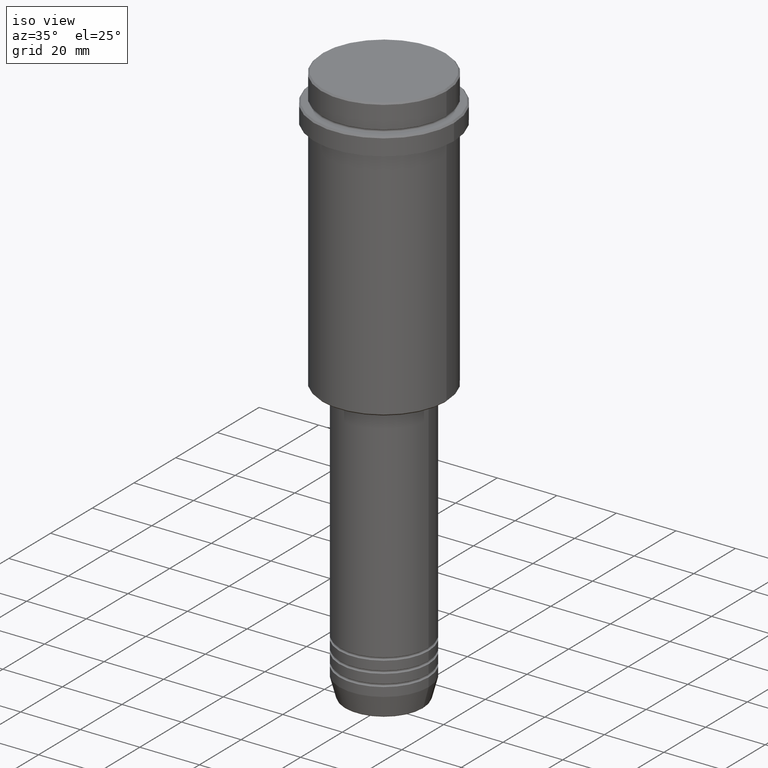
[diagram: clean part render]
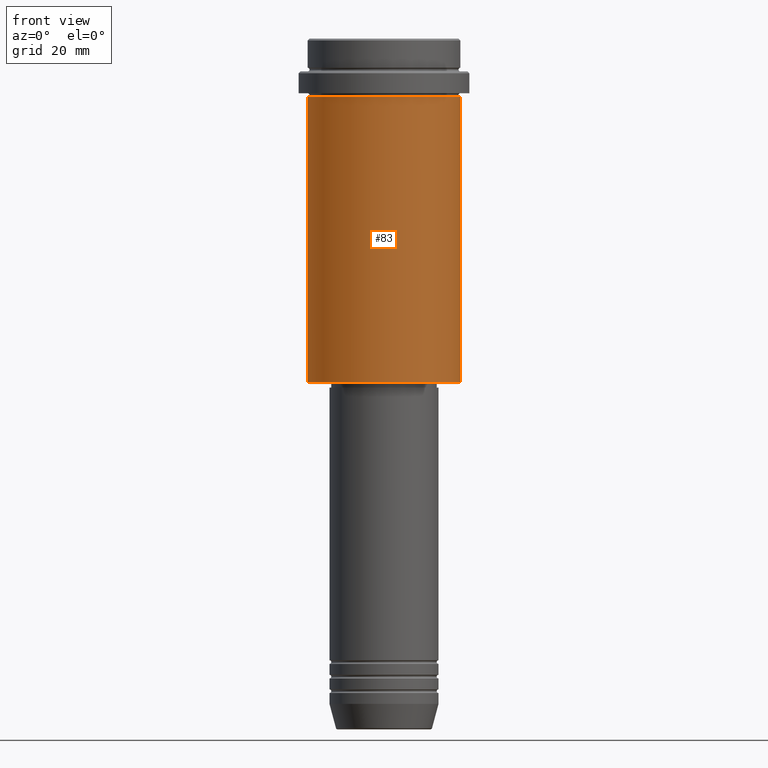
[diagram: tour spotlight — one face highlighted and labeled with its STEP entity id]
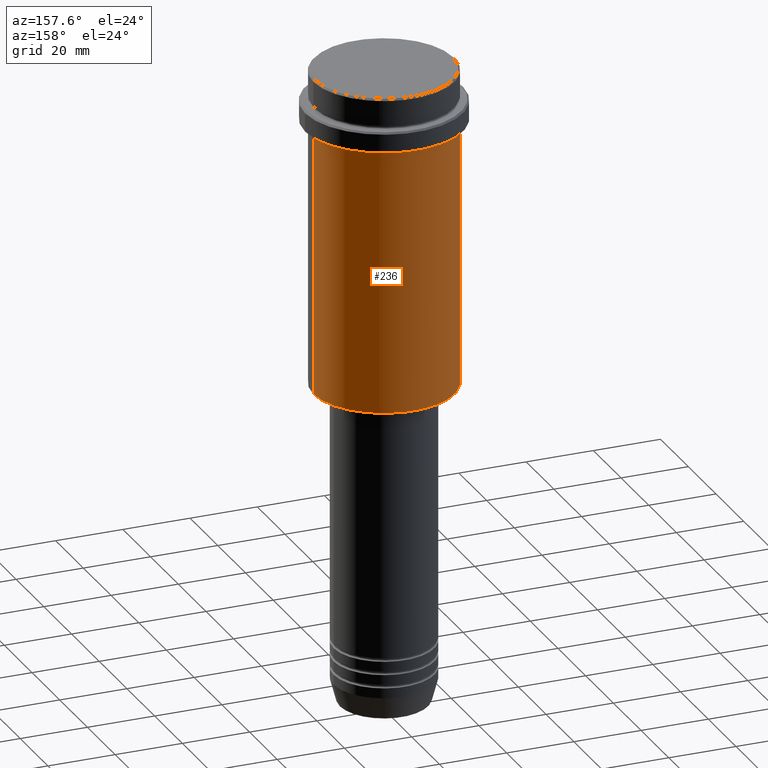
[diagram: tour spotlight — one face highlighted and labeled with its STEP entity id]
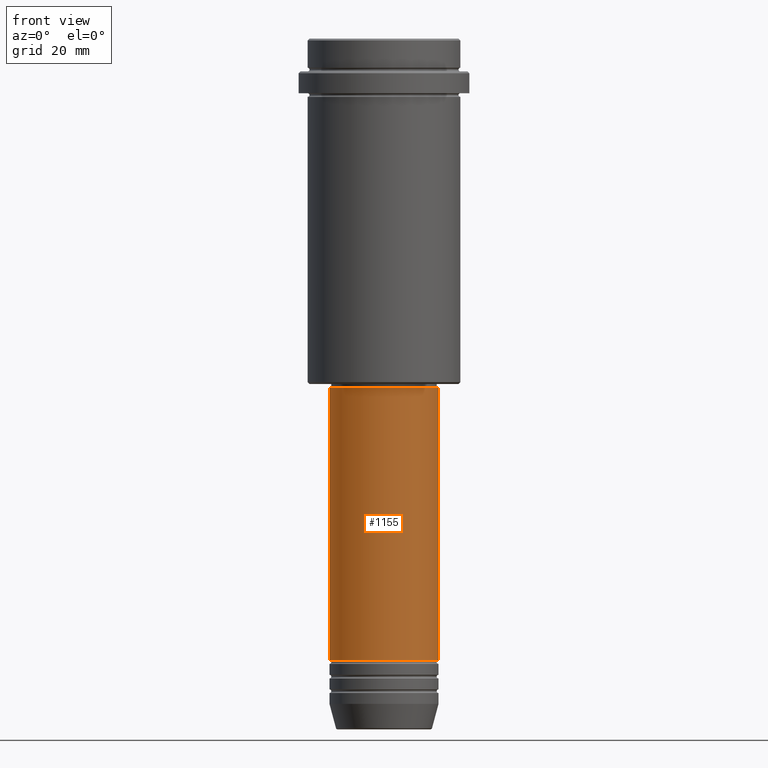
[diagram: tour spotlight — one face highlighted and labeled with its STEP entity id]
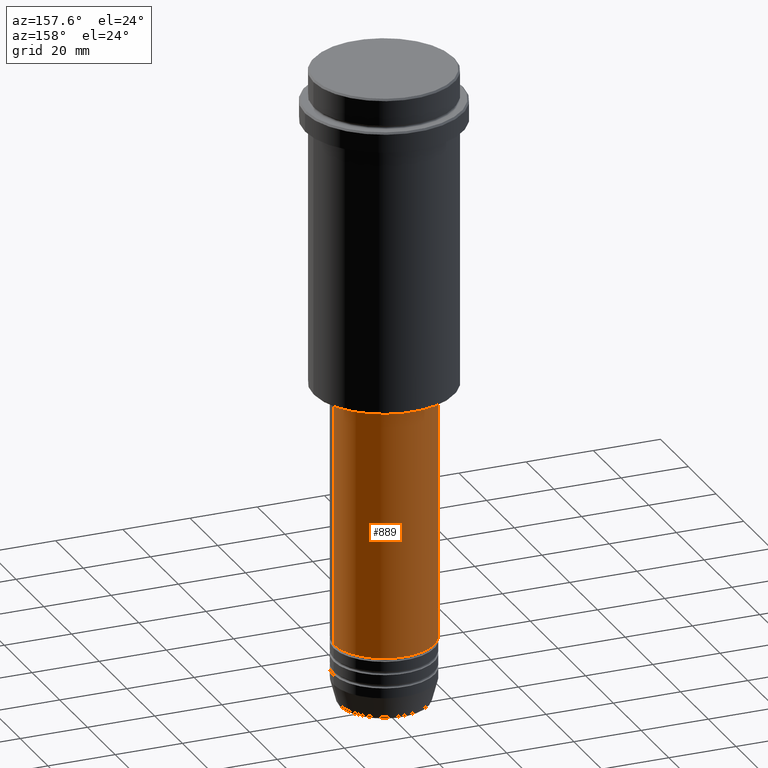
[diagram: tour spotlight — one face highlighted and labeled with its STEP entity id]
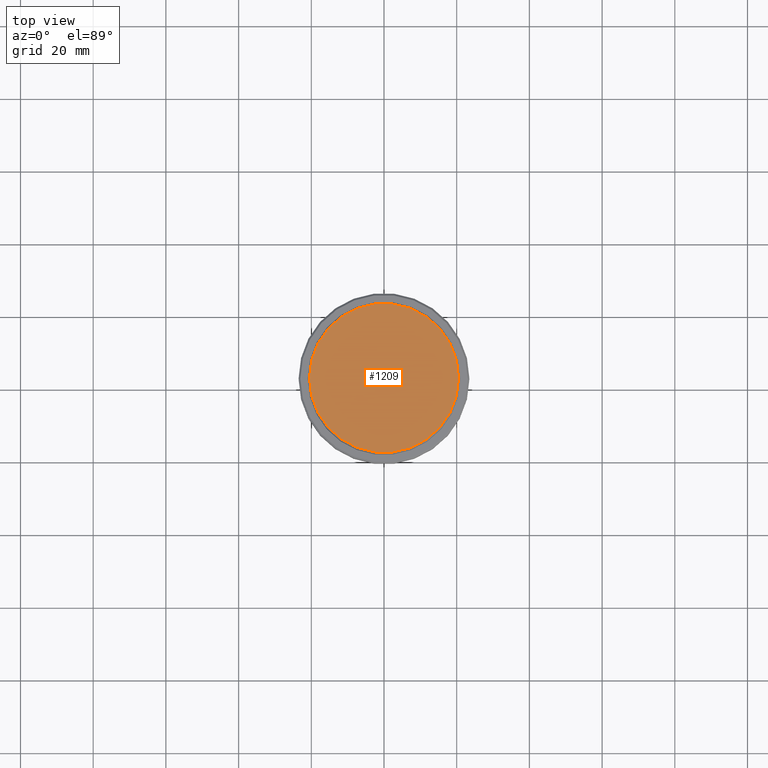
[diagram: tour spotlight — one face highlighted and labeled with its STEP entity id]
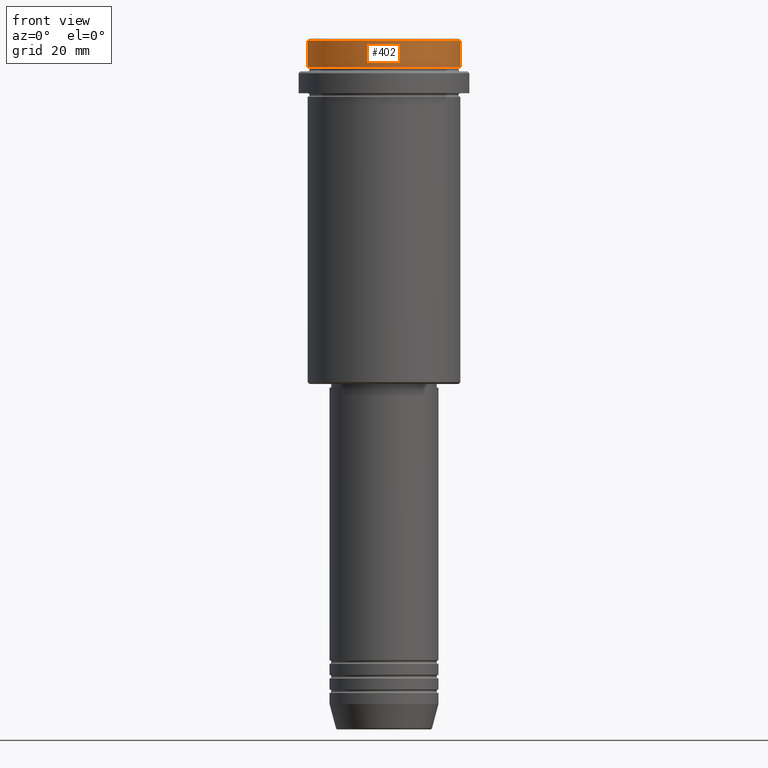
[diagram: tour spotlight — one face highlighted and labeled with its STEP entity id]
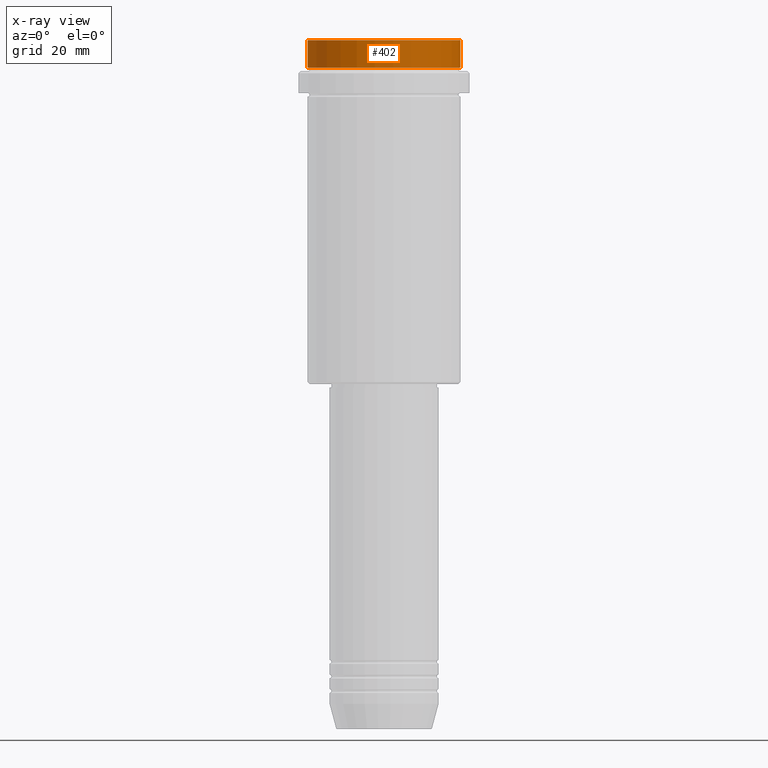
[diagram: x-ray of the same camera — body ghosted, this tour face saturated]
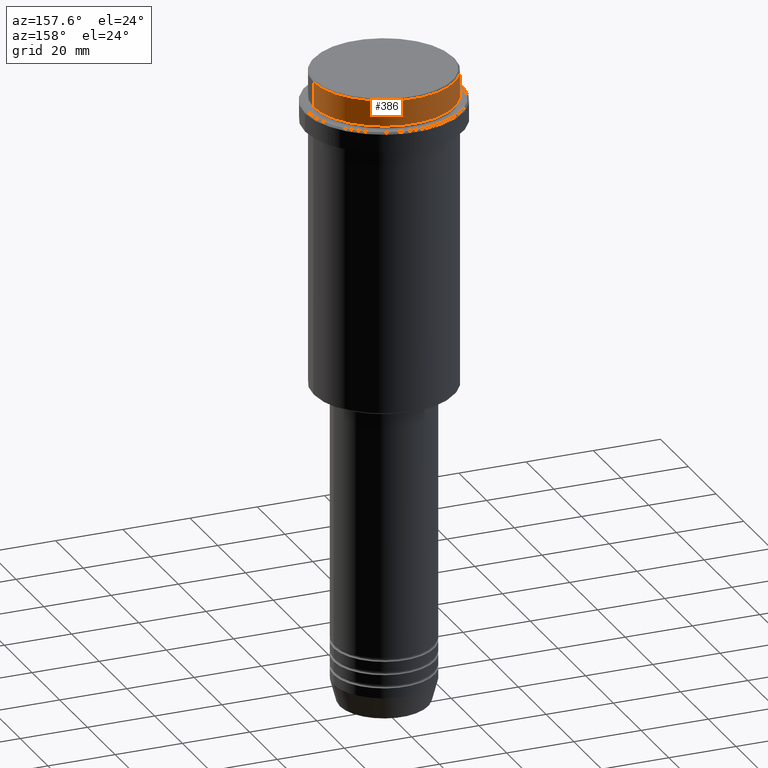
[diagram: tour spotlight — one face highlighted and labeled with its STEP entity id]
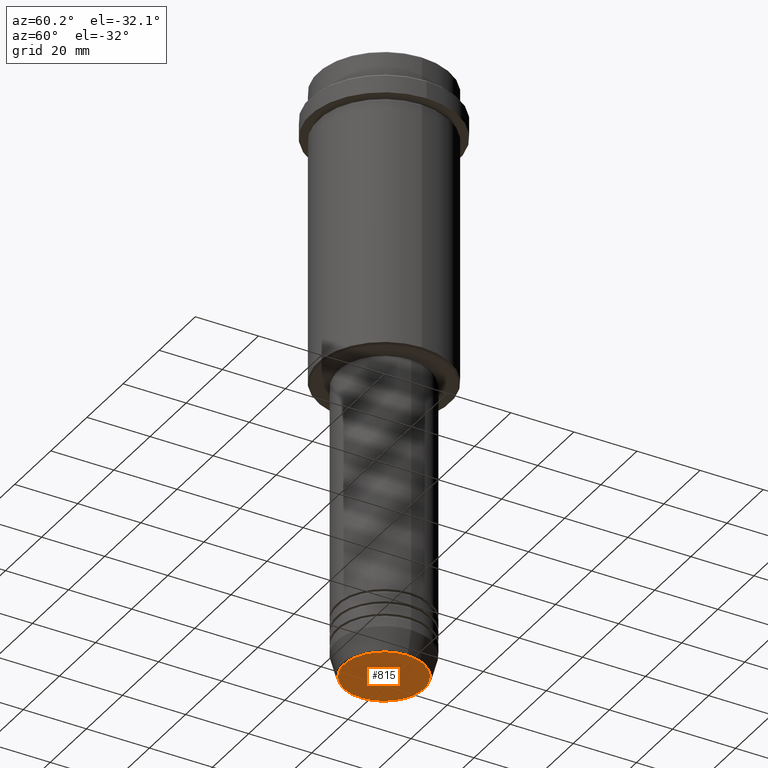
[diagram: tour spotlight — one face highlighted and labeled with its STEP entity id]
A machine part: a face-by-face anatomy tour. The part has 52 B-rep faces; the first image is the clean iso view, then the 8 largest visible faces are spotlighted one at a time (largest first), each with its STEP entity span.

Face 1 — front view, entity #83. In plain terms, the highlighted cylindrical surface (partial cylindrical patch) has radius 21 mm, axis along (-0, -0, 1).
Definition (entity closure, byte-faithful):
#27 = CARTESIAN_POINT ( 'NONE',  ( 21.00000000000000000, 0.000000000000000000, 0.000000000000000000 ) ) ;
#83 = ADVANCED_FACE ( 'NONE', ( #941 ), #191, .T. ) ;
#95 = CARTESIAN_POINT ( 'NONE',  ( -21.00000000000000000, 2.571758278209441661E-15, -94.49999999999998579 ) ) ;
#153 = CARTESIAN_POINT ( 'NONE',  ( 0.000000000000000000, 0.000000000000000000, -16.00000000000000355 ) ) ;
#171 = VERTEX_POINT ( 'NONE', #95 ) ;
#177 = DIRECTION ( 'NONE',  ( -0.000000000000000000, -0.000000000000000000, 1.000000000000000000 ) ) ;
#191 = CYLINDRICAL_SURFACE ( 'NONE', #225, 21.00000000000000000 ) ;
#225 = AXIS2_PLACEMENT_3D ( 'NONE', #622, #1357, #715 ) ;
#258 = VERTEX_POINT ( 'NONE', #1188 ) ;
#271 = VERTEX_POINT ( 'NONE', #821 ) ;
#285 = EDGE_CURVE ( 'NONE', #171, #258, #1065, .T. ) ;
#288 = VECTOR ( 'NONE', #416, 1000.000000000000000 ) ;
#322 = EDGE_LOOP ( 'NONE', ( #1410, #347, #1399, #1009 ) ) ;
#336 = DIRECTION ( 'NONE',  ( -0.000000000000000000, -0.000000000000000000, 1.000000000000000000 ) ) ;
#347 = ORIENTED_EDGE ( 'NONE', *, *, #285, .T. ) ;
#363 = CIRCLE ( 'NONE', #1218, 21.00000000000000000 ) ;
#416 = DIRECTION ( 'NONE',  ( -0.000000000000000000, -0.000000000000000000, 1.000000000000000000 ) ) ;
#421 = LINE ( 'NONE', #854, #288 ) ;
#443 = DIRECTION ( 'NONE',  ( -1.000000000000000000, 0.000000000000000000, 0.000000000000000000 ) ) ;
#545 = VECTOR ( 'NONE', #336, 1000.000000000000000 ) ;
#575 = VERTEX_POINT ( 'NONE', #1037 ) ;
#621 = EDGE_CURVE ( 'NONE', #271, #575, #363, .T. ) ;
#622 = CARTESIAN_POINT ( 'NONE',  ( 0.000000000000000000, 0.000000000000000000, 0.000000000000000000 ) ) ;
#715 = DIRECTION ( 'NONE',  ( 1.000000000000000000, 0.000000000000000000, 0.000000000000000000 ) ) ;
#769 = EDGE_CURVE ( 'NONE', #171, #271, #421, .T. ) ;
#796 = LINE ( 'NONE', #27, #545 ) ;
#817 = DIRECTION ( 'NONE',  ( 1.000000000000000000, 0.000000000000000000, 0.000000000000000000 ) ) ;
#821 = CARTESIAN_POINT ( 'NONE',  ( -21.00000000000000000, 2.571758278209441661E-15, -16.00000000000000355 ) ) ;
#854 = CARTESIAN_POINT ( 'NONE',  ( -21.00000000000000000, 2.571758278209441661E-15, 0.000000000000000000 ) ) ;
#873 = DIRECTION ( 'NONE',  ( -0.000000000000000000, -0.000000000000000000, 1.000000000000000000 ) ) ;
#876 = EDGE_CURVE ( 'NONE', #258, #575, #796, .T. ) ;
#941 = FACE_OUTER_BOUND ( 'NONE', #322, .T. ) ;
#1009 = ORIENTED_EDGE ( 'NONE', *, *, #621, .F. ) ;
#1037 = CARTESIAN_POINT ( 'NONE',  ( 21.00000000000000000, 0.000000000000000000, -16.00000000000000355 ) ) ;
#1065 = CIRCLE ( 'NONE', #1201, 21.00000000000000000 ) ;
#1188 = CARTESIAN_POINT ( 'NONE',  ( 21.00000000000000000, 0.000000000000000000, -94.49999999999998579 ) ) ;
#1201 = AXIS2_PLACEMENT_3D ( 'NONE', #1415, #873, #443 ) ;
#1218 = AXIS2_PLACEMENT_3D ( 'NONE', #153, #177, #817 ) ;
#1357 = DIRECTION ( 'NONE',  ( -0.000000000000000000, -0.000000000000000000, 1.000000000000000000 ) ) ;
#1399 = ORIENTED_EDGE ( 'NONE', *, *, #876, .T. ) ;
#1410 = ORIENTED_EDGE ( 'NONE', *, *, #769, .F. ) ;
#1415 = CARTESIAN_POINT ( 'NONE',  ( 0.000000000000000000, 0.000000000000000000, -94.49999999999998579 ) ) ;

Face 2 — auxiliary view, entity #236. In plain terms, the highlighted cylindrical surface (partial cylindrical patch) has radius 21 mm, axis along (-0, -0, 1).
Definition (entity closure, byte-faithful):
#27 = CARTESIAN_POINT ( 'NONE',  ( 21.00000000000000000, 0.000000000000000000, 0.000000000000000000 ) ) ;
#82 = EDGE_LOOP ( 'NONE', ( #377, #630, #1182, #903 ) ) ;
#95 = CARTESIAN_POINT ( 'NONE',  ( -21.00000000000000000, 2.571758278209441661E-15, -94.49999999999998579 ) ) ;
#148 = CIRCLE ( 'NONE', #956, 21.00000000000000000 ) ;
#171 = VERTEX_POINT ( 'NONE', #95 ) ;
#236 = ADVANCED_FACE ( 'NONE', ( #1042 ), #396, .T. ) ;
#258 = VERTEX_POINT ( 'NONE', #1188 ) ;
#271 = VERTEX_POINT ( 'NONE', #821 ) ;
#288 = VECTOR ( 'NONE', #416, 1000.000000000000000 ) ;
#333 = EDGE_CURVE ( 'NONE', #575, #271, #148, .T. ) ;
#336 = DIRECTION ( 'NONE',  ( -0.000000000000000000, -0.000000000000000000, 1.000000000000000000 ) ) ;
#377 = ORIENTED_EDGE ( 'NONE', *, *, #1193, .T. ) ;
#396 = CYLINDRICAL_SURFACE ( 'NONE', #705, 21.00000000000000000 ) ;
#397 = CARTESIAN_POINT ( 'NONE',  ( 0.000000000000000000, 0.000000000000000000, -94.49999999999998579 ) ) ;
#416 = DIRECTION ( 'NONE',  ( -0.000000000000000000, -0.000000000000000000, 1.000000000000000000 ) ) ;
#421 = LINE ( 'NONE', #854, #288 ) ;
#472 = AXIS2_PLACEMENT_3D ( 'NONE', #397, #1032, #1143 ) ;
#475 = DIRECTION ( 'NONE',  ( -0.000000000000000000, -0.000000000000000000, 1.000000000000000000 ) ) ;
#545 = VECTOR ( 'NONE', #336, 1000.000000000000000 ) ;
#556 = CARTESIAN_POINT ( 'NONE',  ( 0.000000000000000000, 0.000000000000000000, -16.00000000000000355 ) ) ;
#575 = VERTEX_POINT ( 'NONE', #1037 ) ;
#630 = ORIENTED_EDGE ( 'NONE', *, *, #769, .T. ) ;
#705 = AXIS2_PLACEMENT_3D ( 'NONE', #1017, #475, #1336 ) ;
#769 = EDGE_CURVE ( 'NONE', #171, #271, #421, .T. ) ;
#796 = LINE ( 'NONE', #27, #545 ) ;
#821 = CARTESIAN_POINT ( 'NONE',  ( -21.00000000000000000, 2.571758278209441661E-15, -16.00000000000000355 ) ) ;
#854 = CARTESIAN_POINT ( 'NONE',  ( -21.00000000000000000, 2.571758278209441661E-15, 0.000000000000000000 ) ) ;
#876 = EDGE_CURVE ( 'NONE', #258, #575, #796, .T. ) ;
#903 = ORIENTED_EDGE ( 'NONE', *, *, #876, .F. ) ;
#956 = AXIS2_PLACEMENT_3D ( 'NONE', #556, #1092, #990 ) ;
#990 = DIRECTION ( 'NONE',  ( 1.000000000000000000, 0.000000000000000000, 0.000000000000000000 ) ) ;
#1017 = CARTESIAN_POINT ( 'NONE',  ( 0.000000000000000000, 0.000000000000000000, 0.000000000000000000 ) ) ;
#1032 = DIRECTION ( 'NONE',  ( -0.000000000000000000, -0.000000000000000000, 1.000000000000000000 ) ) ;
#1037 = CARTESIAN_POINT ( 'NONE',  ( 21.00000000000000000, 0.000000000000000000, -16.00000000000000355 ) ) ;
#1042 = FACE_OUTER_BOUND ( 'NONE', #82, .T. ) ;
#1092 = DIRECTION ( 'NONE',  ( -0.000000000000000000, -0.000000000000000000, 1.000000000000000000 ) ) ;
#1143 = DIRECTION ( 'NONE',  ( -1.000000000000000000, 0.000000000000000000, 0.000000000000000000 ) ) ;
#1182 = ORIENTED_EDGE ( 'NONE', *, *, #333, .F. ) ;
#1188 = CARTESIAN_POINT ( 'NONE',  ( 21.00000000000000000, 0.000000000000000000, -94.49999999999998579 ) ) ;
#1193 = EDGE_CURVE ( 'NONE', #258, #171, #1242, .T. ) ;
#1242 = CIRCLE ( 'NONE', #472, 21.00000000000000000 ) ;
#1336 = DIRECTION ( 'NONE',  ( 1.000000000000000000, 0.000000000000000000, 0.000000000000000000 ) ) ;

Face 3 — front view, entity #1155. In plain terms, the highlighted cylindrical surface (partial cylindrical patch) has radius 15 mm, axis along (-0, -0, 1).
Definition (entity closure, byte-faithful):
#5 = EDGE_LOOP ( 'NONE', ( #391, #1284, #1170, #1125 ) ) ;
#48 = DIRECTION ( 'NONE',  ( -0.000000000000000000, -0.000000000000000000, 1.000000000000000000 ) ) ;
#77 = AXIS2_PLACEMENT_3D ( 'NONE', #953, #1368, #603 ) ;
#272 = LINE ( 'NONE', #505, #1200 ) ;
#274 = CARTESIAN_POINT ( 'NONE',  ( 15.00000000000000000, 0.000000000000000000, 0.000000000000000000 ) ) ;
#353 = VERTEX_POINT ( 'NONE', #1076 ) ;
#391 = ORIENTED_EDGE ( 'NONE', *, *, #1055, .F. ) ;
#464 = CARTESIAN_POINT ( 'NONE',  ( 15.00000000000000000, 0.000000000000000000, -96.00000000000000000 ) ) ;
#505 = CARTESIAN_POINT ( 'NONE',  ( -15.00000000000000000, 1.836970198721029589E-15, 0.000000000000000000 ) ) ;
#528 = VERTEX_POINT ( 'NONE', #464 ) ;
#544 = VERTEX_POINT ( 'NONE', #800 ) ;
#557 = EDGE_CURVE ( 'NONE', #652, #528, #1341, .T. ) ;
#603 = DIRECTION ( 'NONE',  ( 1.000000000000000000, 0.000000000000000000, 0.000000000000000000 ) ) ;
#652 = VERTEX_POINT ( 'NONE', #838 ) ;
#701 = AXIS2_PLACEMENT_3D ( 'NONE', #827, #719, #1239 ) ;
#719 = DIRECTION ( 'NONE',  ( -0.000000000000000000, -0.000000000000000000, 1.000000000000000000 ) ) ;
#800 = CARTESIAN_POINT ( 'NONE',  ( -15.00000000000000000, 1.836970198721029589E-15, -96.00000000000000000 ) ) ;
#811 = DIRECTION ( 'NONE',  ( -0.000000000000000000, -0.000000000000000000, 1.000000000000000000 ) ) ;
#827 = CARTESIAN_POINT ( 'NONE',  ( 0.000000000000000000, 0.000000000000000000, -96.00000000000000000 ) ) ;
#832 = CYLINDRICAL_SURFACE ( 'NONE', #77, 15.00000000000000000 ) ;
#838 = CARTESIAN_POINT ( 'NONE',  ( 15.00000000000000000, 0.000000000000000000, -170.9999999999998863 ) ) ;
#927 = FACE_OUTER_BOUND ( 'NONE', #5, .T. ) ;
#953 = CARTESIAN_POINT ( 'NONE',  ( 0.000000000000000000, 0.000000000000000000, 0.000000000000000000 ) ) ;
#1055 = EDGE_CURVE ( 'NONE', #353, #544, #272, .T. ) ;
#1076 = CARTESIAN_POINT ( 'NONE',  ( -15.00000000000000000, 1.836970198721029589E-15, -170.9999999999998863 ) ) ;
#1084 = EDGE_CURVE ( 'NONE', #353, #652, #1087, .T. ) ;
#1087 = CIRCLE ( 'NONE', #1124, 15.00000000000000000 ) ;
#1110 = EDGE_CURVE ( 'NONE', #544, #528, #1126, .T. ) ;
#1124 = AXIS2_PLACEMENT_3D ( 'NONE', #1256, #811, #1236 ) ;
#1125 = ORIENTED_EDGE ( 'NONE', *, *, #1110, .F. ) ;
#1126 = CIRCLE ( 'NONE', #701, 15.00000000000000000 ) ;
#1147 = DIRECTION ( 'NONE',  ( -0.000000000000000000, -0.000000000000000000, 1.000000000000000000 ) ) ;
#1155 = ADVANCED_FACE ( 'NONE', ( #927 ), #832, .T. ) ;
#1170 = ORIENTED_EDGE ( 'NONE', *, *, #557, .T. ) ;
#1200 = VECTOR ( 'NONE', #48, 1000.000000000000000 ) ;
#1236 = DIRECTION ( 'NONE',  ( 1.000000000000000000, 0.000000000000000000, 0.000000000000000000 ) ) ;
#1239 = DIRECTION ( 'NONE',  ( 1.000000000000000000, 0.000000000000000000, 0.000000000000000000 ) ) ;
#1256 = CARTESIAN_POINT ( 'NONE',  ( 0.000000000000000000, 0.000000000000000000, -170.9999999999998863 ) ) ;
#1284 = ORIENTED_EDGE ( 'NONE', *, *, #1084, .T. ) ;
#1325 = VECTOR ( 'NONE', #1147, 1000.000000000000000 ) ;
#1341 = LINE ( 'NONE', #274, #1325 ) ;
#1368 = DIRECTION ( 'NONE',  ( -0.000000000000000000, -0.000000000000000000, 1.000000000000000000 ) ) ;

Face 4 — auxiliary view, entity #889. In plain terms, the highlighted cylindrical surface (partial cylindrical patch) has radius 15 mm, axis along (-0, -0, 1).
Definition (entity closure, byte-faithful):
#24 = EDGE_CURVE ( 'NONE', #652, #353, #78, .T. ) ;
#48 = DIRECTION ( 'NONE',  ( -0.000000000000000000, -0.000000000000000000, 1.000000000000000000 ) ) ;
#78 = CIRCLE ( 'NONE', #924, 15.00000000000000000 ) ;
#101 = CIRCLE ( 'NONE', #840, 15.00000000000000000 ) ;
#158 = DIRECTION ( 'NONE',  ( -0.000000000000000000, -0.000000000000000000, 1.000000000000000000 ) ) ;
#234 = CARTESIAN_POINT ( 'NONE',  ( 0.000000000000000000, 0.000000000000000000, 0.000000000000000000 ) ) ;
#272 = LINE ( 'NONE', #505, #1200 ) ;
#274 = CARTESIAN_POINT ( 'NONE',  ( 15.00000000000000000, 0.000000000000000000, 0.000000000000000000 ) ) ;
#353 = VERTEX_POINT ( 'NONE', #1076 ) ;
#368 = ORIENTED_EDGE ( 'NONE', *, *, #24, .T. ) ;
#406 = DIRECTION ( 'NONE',  ( -0.000000000000000000, -0.000000000000000000, 1.000000000000000000 ) ) ;
#457 = EDGE_LOOP ( 'NONE', ( #368, #770, #1262, #1400 ) ) ;
#464 = CARTESIAN_POINT ( 'NONE',  ( 15.00000000000000000, 0.000000000000000000, -96.00000000000000000 ) ) ;
#505 = CARTESIAN_POINT ( 'NONE',  ( -15.00000000000000000, 1.836970198721029589E-15, 0.000000000000000000 ) ) ;
#508 = DIRECTION ( 'NONE',  ( 1.000000000000000000, 0.000000000000000000, 0.000000000000000000 ) ) ;
#528 = VERTEX_POINT ( 'NONE', #464 ) ;
#544 = VERTEX_POINT ( 'NONE', #800 ) ;
#557 = EDGE_CURVE ( 'NONE', #652, #528, #1341, .T. ) ;
#581 = EDGE_CURVE ( 'NONE', #528, #544, #101, .T. ) ;
#637 = AXIS2_PLACEMENT_3D ( 'NONE', #234, #673, #1100 ) ;
#652 = VERTEX_POINT ( 'NONE', #838 ) ;
#673 = DIRECTION ( 'NONE',  ( -0.000000000000000000, -0.000000000000000000, 1.000000000000000000 ) ) ;
#770 = ORIENTED_EDGE ( 'NONE', *, *, #1055, .T. ) ;
#780 = FACE_OUTER_BOUND ( 'NONE', #457, .T. ) ;
#800 = CARTESIAN_POINT ( 'NONE',  ( -15.00000000000000000, 1.836970198721029589E-15, -96.00000000000000000 ) ) ;
#838 = CARTESIAN_POINT ( 'NONE',  ( 15.00000000000000000, 0.000000000000000000, -170.9999999999998863 ) ) ;
#840 = AXIS2_PLACEMENT_3D ( 'NONE', #913, #158, #508 ) ;
#889 = ADVANCED_FACE ( 'NONE', ( #780 ), #1215, .T. ) ;
#913 = CARTESIAN_POINT ( 'NONE',  ( 0.000000000000000000, 0.000000000000000000, -96.00000000000000000 ) ) ;
#924 = AXIS2_PLACEMENT_3D ( 'NONE', #1058, #406, #1257 ) ;
#1055 = EDGE_CURVE ( 'NONE', #353, #544, #272, .T. ) ;
#1058 = CARTESIAN_POINT ( 'NONE',  ( 0.000000000000000000, 0.000000000000000000, -170.9999999999998863 ) ) ;
#1076 = CARTESIAN_POINT ( 'NONE',  ( -15.00000000000000000, 1.836970198721029589E-15, -170.9999999999998863 ) ) ;
#1100 = DIRECTION ( 'NONE',  ( 1.000000000000000000, 0.000000000000000000, 0.000000000000000000 ) ) ;
#1147 = DIRECTION ( 'NONE',  ( -0.000000000000000000, -0.000000000000000000, 1.000000000000000000 ) ) ;
#1200 = VECTOR ( 'NONE', #48, 1000.000000000000000 ) ;
#1215 = CYLINDRICAL_SURFACE ( 'NONE', #637, 15.00000000000000000 ) ;
#1257 = DIRECTION ( 'NONE',  ( 1.000000000000000000, 0.000000000000000000, 0.000000000000000000 ) ) ;
#1262 = ORIENTED_EDGE ( 'NONE', *, *, #581, .F. ) ;
#1325 = VECTOR ( 'NONE', #1147, 1000.000000000000000 ) ;
#1341 = LINE ( 'NONE', #274, #1325 ) ;
#1400 = ORIENTED_EDGE ( 'NONE', *, *, #557, .F. ) ;

Face 5 — top view, entity #1209. In plain terms, the highlighted planar face has unit normal (0, -0, 1).
Definition (entity closure, byte-faithful):
#41 = DIRECTION ( 'NONE',  ( -0.000000000000000000, -0.000000000000000000, 1.000000000000000000 ) ) ;
#76 = CARTESIAN_POINT ( 'NONE',  ( 20.49999999999998934, 2.541142108230757480E-15, 0.000000000000000000 ) ) ;
#105 = AXIS2_PLACEMENT_3D ( 'NONE', #1235, #41, #263 ) ;
#124 = CIRCLE ( 'NONE', #105, 20.49999999999998934 ) ;
#143 = ORIENTED_EDGE ( 'NONE', *, *, #250, .T. ) ;
#166 = CARTESIAN_POINT ( 'NONE',  ( 0.000000000000000000, 0.000000000000000000, 0.000000000000000000 ) ) ;
#200 = EDGE_CURVE ( 'NONE', #1283, #1285, #844, .T. ) ;
#250 = EDGE_CURVE ( 'NONE', #1285, #1283, #124, .T. ) ;
#263 = DIRECTION ( 'NONE',  ( 1.000000000000000000, 0.000000000000000000, 0.000000000000000000 ) ) ;
#286 = DIRECTION ( 'NONE',  ( 1.000000000000000000, 0.000000000000000000, 0.000000000000000000 ) ) ;
#390 = PLANE ( 'NONE',  #819 ) ;
#511 = CARTESIAN_POINT ( 'NONE',  ( 0.000000000000000000, 0.000000000000000000, 0.000000000000000000 ) ) ;
#611 = DIRECTION ( 'NONE',  ( 0.000000000000000000, -0.000000000000000000, 1.000000000000000000 ) ) ;
#819 = AXIS2_PLACEMENT_3D ( 'NONE', #166, #611, #286 ) ;
#844 = CIRCLE ( 'NONE', #1000, 20.49999999999998934 ) ;
#860 = ORIENTED_EDGE ( 'NONE', *, *, #200, .T. ) ;
#944 = CARTESIAN_POINT ( 'NONE',  ( -20.49999999999998934, 0.000000000000000000, 0.000000000000000000 ) ) ;
#945 = DIRECTION ( 'NONE',  ( -0.000000000000000000, -0.000000000000000000, 1.000000000000000000 ) ) ;
#1000 = AXIS2_PLACEMENT_3D ( 'NONE', #511, #945, #1354 ) ;
#1135 = FACE_OUTER_BOUND ( 'NONE', #1208, .T. ) ;
#1208 = EDGE_LOOP ( 'NONE', ( #143, #860 ) ) ;
#1209 = ADVANCED_FACE ( 'NONE', ( #1135 ), #390, .T. ) ;
#1235 = CARTESIAN_POINT ( 'NONE',  ( 0.000000000000000000, 0.000000000000000000, 0.000000000000000000 ) ) ;
#1283 = VERTEX_POINT ( 'NONE', #76 ) ;
#1285 = VERTEX_POINT ( 'NONE', #944 ) ;
#1354 = DIRECTION ( 'NONE',  ( 1.000000000000000000, 0.000000000000000000, 0.000000000000000000 ) ) ;

Face 6 — front view, entity #402. An x-ray twin of the same camera follows (body ghosted, this face saturated) — the face is partly hidden behind the body. In plain terms, the highlighted cylindrical surface (partial cylindrical patch) has radius 21 mm, axis along (-0, -0, 1).
Definition (entity closure, byte-faithful):
#16 = DIRECTION ( 'NONE',  ( -0.000000000000000000, -0.000000000000000000, 1.000000000000000000 ) ) ;
#26 = VERTEX_POINT ( 'NONE', #846 ) ;
#49 = VERTEX_POINT ( 'NONE', #282 ) ;
#64 = EDGE_CURVE ( 'NONE', #97, #26, #207, .T. ) ;
#69 = CARTESIAN_POINT ( 'NONE',  ( 21.00000000000000000, 0.000000000000000000, 0.000000000000000000 ) ) ;
#72 = DIRECTION ( 'NONE',  ( 1.000000000000000000, 0.000000000000000000, 0.000000000000000000 ) ) ;
#97 = VERTEX_POINT ( 'NONE', #393 ) ;
#113 = EDGE_CURVE ( 'NONE', #1016, #97, #507, .T. ) ;
#122 = CIRCLE ( 'NONE', #1039, 21.00000000000000000 ) ;
#141 = ORIENTED_EDGE ( 'NONE', *, *, #1011, .F. ) ;
#207 = CIRCLE ( 'NONE', #1222, 21.00000000000000000 ) ;
#218 = FACE_OUTER_BOUND ( 'NONE', #483, .T. ) ;
#273 = DIRECTION ( 'NONE',  ( 0.000000000000000000, 0.000000000000000000, -1.000000000000000000 ) ) ;
#281 = LINE ( 'NONE', #1116, #495 ) ;
#282 = CARTESIAN_POINT ( 'NONE',  ( -21.00000000000000000, 2.571758278209441661E-15, -7.999999999999998224 ) ) ;
#328 = ORIENTED_EDGE ( 'NONE', *, *, #64, .T. ) ;
#329 = ORIENTED_EDGE ( 'NONE', *, *, #113, .T. ) ;
#393 = CARTESIAN_POINT ( 'NONE',  ( 21.00000000000000000, 0.000000000000000000, -0.5000000000000108802 ) ) ;
#402 = ADVANCED_FACE ( 'NONE', ( #218 ), #1305, .T. ) ;
#483 = EDGE_LOOP ( 'NONE', ( #141, #668, #329, #328 ) ) ;
#495 = VECTOR ( 'NONE', #930, 1000.000000000000000 ) ;
#507 = LINE ( 'NONE', #69, #1408 ) ;
#552 = DIRECTION ( 'NONE',  ( 1.000000000000000000, 0.000000000000000000, 0.000000000000000000 ) ) ;
#655 = CARTESIAN_POINT ( 'NONE',  ( 0.000000000000000000, 0.000000000000000000, 0.000000000000000000 ) ) ;
#668 = ORIENTED_EDGE ( 'NONE', *, *, #856, .T. ) ;
#691 = DIRECTION ( 'NONE',  ( -0.000000000000000000, -0.000000000000000000, 1.000000000000000000 ) ) ;
#786 = DIRECTION ( 'NONE',  ( 1.000000000000000000, 0.000000000000000000, 0.000000000000000000 ) ) ;
#846 = CARTESIAN_POINT ( 'NONE',  ( -21.00000000000000000, 2.571758278209441661E-15, -0.5000000000000108802 ) ) ;
#856 = EDGE_CURVE ( 'NONE', #49, #1016, #122, .T. ) ;
#930 = DIRECTION ( 'NONE',  ( -0.000000000000000000, -0.000000000000000000, 1.000000000000000000 ) ) ;
#985 = DIRECTION ( 'NONE',  ( -0.000000000000000000, -0.000000000000000000, 1.000000000000000000 ) ) ;
#1011 = EDGE_CURVE ( 'NONE', #49, #26, #281, .T. ) ;
#1016 = VERTEX_POINT ( 'NONE', #1356 ) ;
#1039 = AXIS2_PLACEMENT_3D ( 'NONE', #1112, #16, #786 ) ;
#1112 = CARTESIAN_POINT ( 'NONE',  ( 0.000000000000000000, 0.000000000000000000, -7.999999999999998224 ) ) ;
#1116 = CARTESIAN_POINT ( 'NONE',  ( -21.00000000000000000, 2.571758278209441661E-15, 0.000000000000000000 ) ) ;
#1166 = CARTESIAN_POINT ( 'NONE',  ( 0.000000000000000000, 0.000000000000000000, -0.5000000000000108802 ) ) ;
#1222 = AXIS2_PLACEMENT_3D ( 'NONE', #1166, #273, #72 ) ;
#1305 = CYLINDRICAL_SURFACE ( 'NONE', #1403, 21.00000000000000000 ) ;
#1356 = CARTESIAN_POINT ( 'NONE',  ( 21.00000000000000000, 0.000000000000000000, -7.999999999999998224 ) ) ;
#1403 = AXIS2_PLACEMENT_3D ( 'NONE', #655, #985, #552 ) ;
#1408 = VECTOR ( 'NONE', #691, 1000.000000000000000 ) ;

Face 7 — auxiliary view, entity #386. In plain terms, the highlighted cylindrical surface (partial cylindrical patch) has radius 21 mm, axis along (-0, -0, 1).
Definition (entity closure, byte-faithful):
#12 = CIRCLE ( 'NONE', #74, 21.00000000000000000 ) ;
#26 = VERTEX_POINT ( 'NONE', #846 ) ;
#49 = VERTEX_POINT ( 'NONE', #282 ) ;
#69 = CARTESIAN_POINT ( 'NONE',  ( 21.00000000000000000, 0.000000000000000000, 0.000000000000000000 ) ) ;
#74 = AXIS2_PLACEMENT_3D ( 'NONE', #750, #1272, #546 ) ;
#97 = VERTEX_POINT ( 'NONE', #393 ) ;
#113 = EDGE_CURVE ( 'NONE', #1016, #97, #507, .T. ) ;
#281 = LINE ( 'NONE', #1116, #495 ) ;
#282 = CARTESIAN_POINT ( 'NONE',  ( -21.00000000000000000, 2.571758278209441661E-15, -7.999999999999998224 ) ) ;
#297 = EDGE_CURVE ( 'NONE', #1016, #49, #568, .T. ) ;
#386 = ADVANCED_FACE ( 'NONE', ( #419 ), #855, .T. ) ;
#393 = CARTESIAN_POINT ( 'NONE',  ( 21.00000000000000000, 0.000000000000000000, -0.5000000000000108802 ) ) ;
#419 = FACE_OUTER_BOUND ( 'NONE', #1308, .T. ) ;
#495 = VECTOR ( 'NONE', #930, 1000.000000000000000 ) ;
#507 = LINE ( 'NONE', #69, #1408 ) ;
#546 = DIRECTION ( 'NONE',  ( 1.000000000000000000, 0.000000000000000000, 0.000000000000000000 ) ) ;
#568 = CIRCLE ( 'NONE', #1349, 21.00000000000000000 ) ;
#580 = ORIENTED_EDGE ( 'NONE', *, *, #113, .F. ) ;
#643 = DIRECTION ( 'NONE',  ( 1.000000000000000000, 0.000000000000000000, 0.000000000000000000 ) ) ;
#650 = DIRECTION ( 'NONE',  ( -0.000000000000000000, -0.000000000000000000, 1.000000000000000000 ) ) ;
#691 = DIRECTION ( 'NONE',  ( -0.000000000000000000, -0.000000000000000000, 1.000000000000000000 ) ) ;
#731 = EDGE_CURVE ( 'NONE', #26, #97, #12, .T. ) ;
#750 = CARTESIAN_POINT ( 'NONE',  ( 0.000000000000000000, 0.000000000000000000, -0.5000000000000108802 ) ) ;
#753 = CARTESIAN_POINT ( 'NONE',  ( 0.000000000000000000, 0.000000000000000000, 0.000000000000000000 ) ) ;
#774 = CARTESIAN_POINT ( 'NONE',  ( 0.000000000000000000, 0.000000000000000000, -7.999999999999998224 ) ) ;
#846 = CARTESIAN_POINT ( 'NONE',  ( -21.00000000000000000, 2.571758278209441661E-15, -0.5000000000000108802 ) ) ;
#855 = CYLINDRICAL_SURFACE ( 'NONE', #1083, 21.00000000000000000 ) ;
#930 = DIRECTION ( 'NONE',  ( -0.000000000000000000, -0.000000000000000000, 1.000000000000000000 ) ) ;
#1011 = EDGE_CURVE ( 'NONE', #49, #26, #281, .T. ) ;
#1016 = VERTEX_POINT ( 'NONE', #1356 ) ;
#1083 = AXIS2_PLACEMENT_3D ( 'NONE', #753, #1178, #643 ) ;
#1116 = CARTESIAN_POINT ( 'NONE',  ( -21.00000000000000000, 2.571758278209441661E-15, 0.000000000000000000 ) ) ;
#1178 = DIRECTION ( 'NONE',  ( -0.000000000000000000, -0.000000000000000000, 1.000000000000000000 ) ) ;
#1197 = DIRECTION ( 'NONE',  ( 1.000000000000000000, 0.000000000000000000, 0.000000000000000000 ) ) ;
#1272 = DIRECTION ( 'NONE',  ( 0.000000000000000000, 0.000000000000000000, -1.000000000000000000 ) ) ;
#1291 = ORIENTED_EDGE ( 'NONE', *, *, #297, .T. ) ;
#1308 = EDGE_LOOP ( 'NONE', ( #1291, #1328, #1324, #580 ) ) ;
#1324 = ORIENTED_EDGE ( 'NONE', *, *, #731, .T. ) ;
#1328 = ORIENTED_EDGE ( 'NONE', *, *, #1011, .T. ) ;
#1349 = AXIS2_PLACEMENT_3D ( 'NONE', #774, #650, #1197 ) ;
#1356 = CARTESIAN_POINT ( 'NONE',  ( 21.00000000000000000, 0.000000000000000000, -7.999999999999998224 ) ) ;
#1408 = VECTOR ( 'NONE', #691, 1000.000000000000000 ) ;

Face 8 — auxiliary view, entity #815. In plain terms, the highlighted planar face has unit normal (0, -0, 1).
Definition (entity closure, byte-faithful):
#92 = VERTEX_POINT ( 'NONE', #1365 ) ;
#196 = DIRECTION ( 'NONE',  ( 0.000000000000000000, 0.000000000000000000, -1.000000000000000000 ) ) ;
#226 = EDGE_CURVE ( 'NONE', #697, #92, #1330, .T. ) ;
#300 = DIRECTION ( 'NONE',  ( 0.000000000000000000, -0.000000000000000000, 1.000000000000000000 ) ) ;
#302 = CARTESIAN_POINT ( 'NONE',  ( 0.000000000000000000, 0.000000000000000000, -190.0000000000000000 ) ) ;
#313 = EDGE_LOOP ( 'NONE', ( #1417, #1072 ) ) ;
#318 = AXIS2_PLACEMENT_3D ( 'NONE', #302, #196, #389 ) ;
#365 = CARTESIAN_POINT ( 'NONE',  ( 0.000000000000000000, 0.000000000000000000, -190.0000000000000000 ) ) ;
#372 = CARTESIAN_POINT ( 'NONE',  ( -12.74069215899265828, 1.589857736427681035E-15, -190.0000000000000000 ) ) ;
#389 = DIRECTION ( 'NONE',  ( 1.000000000000000000, 0.000000000000000000, 0.000000000000000000 ) ) ;
#458 = DIRECTION ( 'NONE',  ( 1.000000000000000000, 0.000000000000000000, 0.000000000000000000 ) ) ;
#469 = CIRCLE ( 'NONE', #1149, 12.74069215899265828 ) ;
#525 = PLANE ( 'NONE',  #612 ) ;
#612 = AXIS2_PLACEMENT_3D ( 'NONE', #1074, #300, #1068 ) ;
#648 = FACE_OUTER_BOUND ( 'NONE', #313, .T. ) ;
#697 = VERTEX_POINT ( 'NONE', #372 ) ;
#815 = ADVANCED_FACE ( 'NONE', ( #648 ), #525, .F. ) ;
#853 = EDGE_CURVE ( 'NONE', #92, #697, #469, .T. ) ;
#1012 = DIRECTION ( 'NONE',  ( 0.000000000000000000, 0.000000000000000000, -1.000000000000000000 ) ) ;
#1068 = DIRECTION ( 'NONE',  ( 1.000000000000000000, 0.000000000000000000, 0.000000000000000000 ) ) ;
#1072 = ORIENTED_EDGE ( 'NONE', *, *, #226, .T. ) ;
#1074 = CARTESIAN_POINT ( 'NONE',  ( 0.000000000000000000, 0.000000000000000000, -190.0000000000000000 ) ) ;
#1149 = AXIS2_PLACEMENT_3D ( 'NONE', #365, #1012, #458 ) ;
#1330 = CIRCLE ( 'NONE', #318, 12.74069215899265828 ) ;
#1365 = CARTESIAN_POINT ( 'NONE',  ( 12.74069215899265828, 0.000000000000000000, -190.0000000000000000 ) ) ;
#1417 = ORIENTED_EDGE ( 'NONE', *, *, #853, .T. ) ;